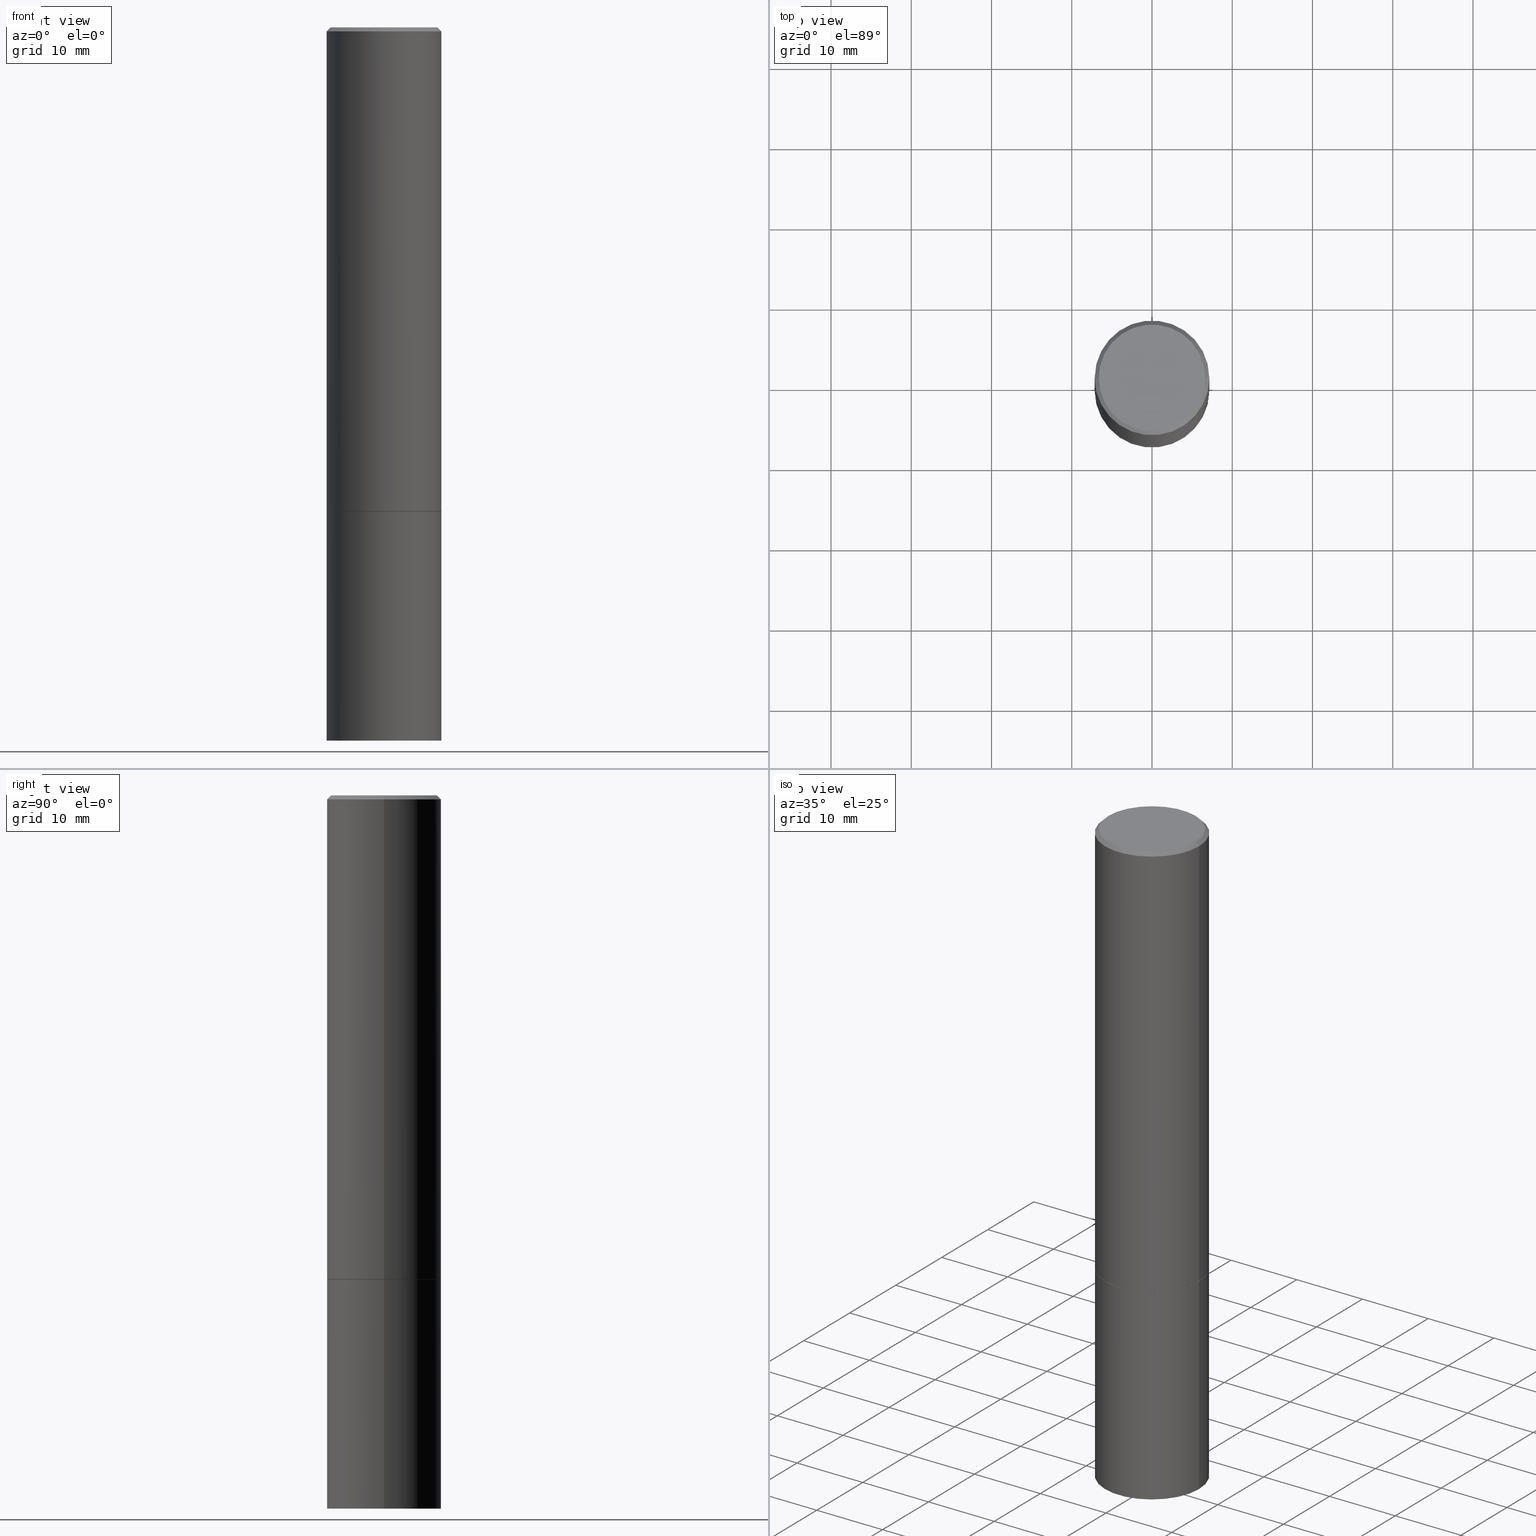
[diagram: canonical four-view strip — front | top / right | iso, engineering-drawing reading convention]
A machine part, canonical four-view strip (front | top / right | iso — engineering-drawing reading convention). The complete STEP part file that produces these views, byte-faithful:
ISO-10303-21;
HEADER;
FILE_DESCRIPTION (( 'STEP AP203' ),
    '1' );
FILE_NAME ('35491.STEP',
    '2024-02-27T18:52:12',
    ( '' ),
    ( '' ),
    'SwSTEP 2.0',
    'SolidWorks 2023',
    '' );
FILE_SCHEMA (( 'CONFIG_CONTROL_DESIGN' ));
ENDSEC;

DATA;
#1 = AXIS2_PLACEMENT_3D ( 'NONE', #297, #76, #153 ) ;
#2 = EDGE_CURVE ( 'NONE', #309, #238, #357, .T. ) ;
#3 = ORIENTED_EDGE ( 'NONE', *, *, #342, .F. ) ;
#4 = DIRECTION ( 'NONE',  ( -1.000000000000000000, 6.982962677686268288E-15, 0.000000000000000000 ) ) ;
#5 = PERSON_AND_ORGANIZATION_ROLE ( 'design_owner' ) ;
#6 = CALENDAR_DATE ( 2024, 27, 2 ) ;
#7 = CC_DESIGN_PERSON_AND_ORGANIZATION_ASSIGNMENT ( #44, #154, ( #280 ) ) ;
#8 = AXIS2_PLACEMENT_3D ( 'NONE', #73, #161, #322 ) ;
#9 = ORIENTED_EDGE ( 'NONE', *, *, #13, .F. ) ;
#10 = ORIENTED_EDGE ( 'NONE', *, *, #306, .F. ) ;
#11 = FACE_OUTER_BOUND ( 'NONE', #226, .T. ) ;
#12 = CYLINDRICAL_SURFACE ( 'NONE', #350, 0.2812499999999998335 ) ;
#13 = EDGE_CURVE ( 'NONE', #205, #23, #57, .T. ) ;
#14 = CARTESIAN_POINT ( 'NONE',  ( 0.2812500000000000000, -1.025622643285173184E-14, -2.374999999999999556 ) ) ;
#15 = ADVANCED_FACE ( 'NONE', ( #11 ), #148, .T. ) ;
#16 = AXIS2_PLACEMENT_3D ( 'NONE', #293, #150, #96 ) ;
#17 = ORGANIZATION ( 'UNSPECIFIED', 'UNSPECIFIED', '' ) ;
#18 = FACE_OUTER_BOUND ( 'NONE', #346, .T. ) ;
#19 = ORIENTED_EDGE ( 'NONE', *, *, #251, .T. ) ;
#20 = DIRECTION ( 'NONE',  ( -2.445468806185136597E-29, 3.491481338843145583E-15, 1.000000000000000000 ) ) ;
#21 = CALENDAR_DATE ( 2024, 27, 2 ) ;
#22 = ADVANCED_BREP_SHAPE_REPRESENTATION ( '35491', ( #165, #170, #216 ), #77 ) ;
#23 = VERTEX_POINT ( 'NONE', #208 ) ;
#24 = DIRECTION ( 'NONE',  ( -2.445468806185136597E-29, 3.491481338843145583E-15, 1.000000000000000000 ) ) ;
#25 = APPROVAL_ROLE ( '' ) ;
#26 = VECTOR ( 'NONE', #67, 39.37007874015748143 ) ;
#27 = VECTOR ( 'NONE', #130, 39.37007874015748143 ) ;
#28 = LENGTH_MEASURE_WITH_UNIT ( LENGTH_MEASURE( 0.02539999999999999897 ), #192 );
#29 = VERTEX_POINT ( 'NONE', #320 ) ;
#30 = EDGE_CURVE ( 'NONE', #55, #94, #172, .T. ) ;
#31 = CARTESIAN_POINT ( 'NONE',  ( 5.807988414689697175E-29, -8.292268179752466962E-15, -2.374999999999999112 ) ) ;
#32 = ADVANCED_FACE ( 'NONE', ( #152 ), #351, .F. ) ;
#33 = AXIS2_PLACEMENT_3D ( 'NONE', #72, #355, #326 ) ;
#34 = DIRECTION ( 'NONE',  ( -2.445468806185136597E-29, 3.491481338843145583E-15, 1.000000000000000000 ) ) ;
#35 = UNCERTAINTY_MEASURE_WITH_UNIT (LENGTH_MEASURE( 1.000000000000000082E-05 ), #142, 'distance_accuracy_value', 'NONE');
#36 = ORIENTED_EDGE ( 'NONE', *, *, #167, .F. ) ;
#37 = MECHANICAL_CONTEXT ( 'NONE', #50, 'mechanical' ) ;
#38 = APPROVAL ( #65, 'UNSPECIFIED' ) ;
#39 = ORIENTED_EDGE ( 'NONE', *, *, #264, .T. ) ;
#40 = LOCAL_TIME ( 13, 52, 12.00000000000000000, #185 ) ;
#41 = FACE_OUTER_BOUND ( 'NONE', #268, .T. ) ;
#42 = DIRECTION ( 'NONE',  ( 1.000000000000000000, -6.982962677686265922E-15, 4.876176775795935793E-29 ) ) ;
#43 = DIRECTION ( 'NONE',  ( 1.000000000000000000, -6.982962677686268288E-15, 0.000000000000000000 ) ) ;
#44 = PERSON_AND_ORGANIZATION ( #90, #17 ) ;
#45 = DIRECTION ( 'NONE',  ( -1.000000000000000000, 6.982962677686265922E-15, -4.876176775795935793E-29 ) ) ;
#46 = CARTESIAN_POINT ( 'NONE',  ( 0.2802499999999999991, -1.024924347017404425E-14, -2.374999999999999112 ) ) ;
#47 = ORIENTED_EDGE ( 'NONE', *, *, #146, .T. ) ;
#48 = LINE ( 'NONE', #133, #283 ) ;
#49 = DATE_AND_TIME ( #80, #40 ) ;
#50 = APPLICATION_CONTEXT ( 'configuration controlled 3d designs of mechanical parts and assemblies' ) ;
#51 = DIRECTION ( 'NONE',  ( -2.438088387897960049E-29, 3.491481338843145188E-15, 1.000000000000000000 ) ) ;
#52 = CARTESIAN_POINT ( 'NONE',  ( 8.559140821647976968E-29, -1.222018468595100934E-14, -3.500000000000000000 ) ) ;
#53 = LOCAL_TIME ( 13, 52, 12.00000000000000000, #244 ) ;
#54 = ADVANCED_FACE ( 'NONE', ( #327 ), #111, .F. ) ;
#55 = VERTEX_POINT ( 'NONE', #364 ) ;
#56 = ORIENTED_EDGE ( 'NONE', *, *, #84, .F. ) ;
#57 = CIRCLE ( 'NONE', #332, 0.2812500000000000000 ) ;
#58 = CC_DESIGN_APPROVAL ( #97, ( #280 ) ) ;
#59 = LINE ( 'NONE', #282, #114 ) ;
#60 = ADVANCED_FACE ( 'NONE', ( #308 ), #314, .T. ) ;
#61 = ORIENTED_EDGE ( 'NONE', *, *, #87, .T. ) ;
#62 = FACE_OUTER_BOUND ( 'NONE', #115, .T. ) ;
#63 = ORIENTED_EDGE ( 'NONE', *, *, #217, .T. ) ;
#64 = CIRCLE ( 'NONE', #145, 0.2812499999999996114 ) ;
#65 = APPROVAL_STATUS ( 'not_yet_approved' ) ;
#66 = ORIENTED_EDGE ( 'NONE', *, *, #13, .T. ) ;
#67 = DIRECTION ( 'NONE',  ( -0.7071067811866320607, 7.493145998870660238E-15, 0.7071067811864629737 ) ) ;
#68 = DIRECTION ( 'NONE',  ( -2.445468806185136597E-29, 3.491481338843145583E-15, 1.000000000000000000 ) ) ;
#69 = AXIS2_PLACEMENT_3D ( 'NONE', #52, #88, #256 ) ;
#70 = DIRECTION ( 'NONE',  ( 1.000000000000000000, -6.982962677686269866E-15, 0.000000000000000000 ) ) ;
#71 = ORIENTED_EDGE ( 'NONE', *, *, #199, .T. ) ;
#72 = CARTESIAN_POINT ( 'NONE',  ( 5.805542945883512693E-29, -8.288776698413625533E-15, -2.373999999999999222 ) ) ;
#73 = CARTESIAN_POINT ( 'NONE',  ( 5.807988414689697175E-29, -8.292268179752466962E-15, -2.374999999999999112 ) ) ;
#74 = PERSON_AND_ORGANIZATION ( #90, #17 ) ;
#75 = CC_DESIGN_PERSON_AND_ORGANIZATION_ASSIGNMENT ( #182, #298, ( #280 ) ) ;
#76 = DIRECTION ( 'NONE',  ( 2.438088387897960049E-29, -3.491481338843145188E-15, -1.000000000000000000 ) ) ;
#77 =( GEOMETRIC_REPRESENTATION_CONTEXT ( 3 ) GLOBAL_UNCERTAINTY_ASSIGNED_CONTEXT ( ( #35 ) ) GLOBAL_UNIT_ASSIGNED_CONTEXT ( ( #142, #361, #176 ) ) REPRESENTATION_CONTEXT ( 'NONE', 'WORKASPACE' ) );
#78 = ORIENTED_EDGE ( 'NONE', *, *, #194, .F. ) ;
#79 = FACE_OUTER_BOUND ( 'NONE', #344, .T. ) ;
#80 = CALENDAR_DATE ( 2024, 27, 2 ) ;
#81 = DIRECTION ( 'NONE',  ( -2.445468806185136877E-29, 3.491481338843145188E-15, 1.000000000000000000 ) ) ;
#82 = APPROVAL_DATE_TIME ( #222, #203 ) ;
#83 = ORIENTED_EDGE ( 'NONE', *, *, #30, .F. ) ;
#84 = EDGE_CURVE ( 'NONE', #29, #331, #92, .T. ) ;
#85 = DIRECTION ( 'NONE',  ( -1.000000000000000000, 6.982962677686265922E-15, -4.876176775795935793E-29 ) ) ;
#86 = CIRCLE ( 'NONE', #290, 0.2812500000000000555 ) ;
#87 = EDGE_CURVE ( 'NONE', #238, #309, #279, .T. ) ;
#88 = DIRECTION ( 'NONE',  ( -2.445468806185136597E-29, 3.491481338843145583E-15, 1.000000000000000000 ) ) ;
#89 = PRODUCT_DEFINITION ( 'UNKNOWN', '', #280, #254 ) ;
#90 = PERSON ( 'UNSPECIFIED', 'UNSPECIFIED', 'UNSPECIFIED', ('UNSPECIFIED'), ('UNSPECIFIED'), ('UNSPECIFIED') ) ;
#91 = AXIS2_PLACEMENT_3D ( 'NONE', #180, #296, #43 ) ;
#92 = LINE ( 'NONE', #123, #26 ) ;
#93 = AXIS2_PLACEMENT_3D ( 'NONE', #118, #235, #218 ) ;
#94 = VERTEX_POINT ( 'NONE', #200 ) ;
#95 = CARTESIAN_POINT ( 'NONE',  ( 8.559140821647976968E-29, -1.222018468595100934E-14, -3.500000000000000000 ) ) ;
#96 = DIRECTION ( 'NONE',  ( 1.000000000000000000, -6.982962677686266711E-15, 4.876176775795935793E-29 ) ) ;
#97 = APPROVAL ( #300, 'UNSPECIFIED' ) ;
#98 = ORIENTED_EDGE ( 'NONE', *, *, #220, .T. ) ;
#99 = DIRECTION ( 'NONE',  ( 1.000000000000000000, -6.982962677686269077E-15, 0.000000000000000000 ) ) ;
#100 = CARTESIAN_POINT ( 'NONE',  ( 0.000000000000000000, 0.000000000000000000, 0.000000000000000000 ) ) ;
#101 = CARTESIAN_POINT ( 'NONE',  ( 1.963958253099320494E-15, 0.2812499999999917288, -2.375000000000000444 ) ) ;
#102 = LINE ( 'NONE', #46, #27 ) ;
#103 = CARTESIAN_POINT ( 'NONE',  ( 5.805542945883512693E-29, -8.288776698413625533E-15, -2.373999999999999222 ) ) ;
#104 = DATE_TIME_ROLE ( 'creation_date' ) ;
#105 = AXIS2_PLACEMENT_3D ( 'NONE', #343, #68, #233 ) ;
#106 = CARTESIAN_POINT ( 'NONE',  ( 0.000000000000000000, 0.000000000000000000, 0.000000000000000000 ) ) ;
#107 = APPROVAL_STATUS ( 'not_yet_approved' ) ;
#108 = AXIS2_PLACEMENT_3D ( 'NONE', #126, #240, #321 ) ;
#109 = DIRECTION ( 'NONE',  ( -2.445468806185136597E-29, 3.491481338843145583E-15, 1.000000000000000000 ) ) ;
#110 = DATE_AND_TIME ( #21, #363 ) ;
#111 = PLANE ( 'NONE',  #156 ) ;
#112 = CARTESIAN_POINT ( 'NONE',  ( 4.890937612370292426E-31, -6.982962677686317493E-17, -0.02000000000000007674 ) ) ;
#113 = AXIS2_PLACEMENT_3D ( 'NONE', #288, #315, #4 ) ;
#114 = VECTOR ( 'NONE', #166, 39.37007874015748143 ) ;
#115 = EDGE_LOOP ( 'NONE', ( #263, #63, #339, #336 ) ) ;
#116 = AXIS2_PLACEMENT_3D ( 'NONE', #201, #318, #175 ) ;
#117 = APPROVAL_PERSON_ORGANIZATION ( #348, #203, #356 ) ;
#118 = CARTESIAN_POINT ( 'NONE',  ( 5.807988414689698296E-29, -8.292268179752468540E-15, -2.374999999999999556 ) ) ;
#119 = APPLICATION_PROTOCOL_DEFINITION ( 'international standard', 'config_control_design', 1994, #177 ) ;
#120 = CLOSED_SHELL ( 'NONE', ( #284, #195, #140, #223, #129, #15, #183, #54 ) ) ;
#121 = CC_DESIGN_SECURITY_CLASSIFICATION ( #307, ( #280 ) ) ;
#122 = CC_DESIGN_APPROVAL ( #38, ( #89 ) ) ;
#123 = CARTESIAN_POINT ( 'NONE',  ( -0.2802499999999999991, -6.300972162784786987E-15, -2.374999999999999112 ) ) ;
#124 = ORIENTED_EDGE ( 'NONE', *, *, #281, .T. ) ;
#125 = DIRECTION ( 'NONE',  ( -2.445468806185136597E-29, 3.491481338843145583E-15, 1.000000000000000000 ) ) ;
#126 = CARTESIAN_POINT ( 'NONE',  ( 4.890937612370292426E-31, -6.982962677686317493E-17, -0.02000000000000007674 ) ) ;
#127 = LINE ( 'NONE', #243, #337 ) ;
#128 = PERSON_AND_ORGANIZATION_ROLE ( 'classification_officer' ) ;
#129 = ADVANCED_FACE ( 'NONE', ( #41 ), #168, .T. ) ;
#130 = DIRECTION ( 'NONE',  ( 0.7071067811866320607, -2.468850131083142557E-15, 0.7071067811864629737 ) ) ;
#131 = CALENDAR_DATE ( 2024, 27, 2 ) ;
#132 = DIRECTION ( 'NONE',  ( -2.445468806185136597E-29, 3.491481338843145583E-15, 1.000000000000000000 ) ) ;
#133 = CARTESIAN_POINT ( 'NONE',  ( -0.2812499999999998335, 1.998401444325280589E-15, -1.383450494134191428E-29 ) ) ;
#134 = PERSON_AND_ORGANIZATION_ROLE ( 'creator' ) ;
#135 = DIRECTION ( 'NONE',  ( -2.445468806185136597E-29, 3.491481338843145583E-15, 1.000000000000000000 ) ) ;
#136 = ORIENTED_EDGE ( 'NONE', *, *, #143, .F. ) ;
#137 = CARTESIAN_POINT ( 'NONE',  ( -0.2612499999999995937, 1.859213812933965593E-15, -1.288019758893701069E-29 ) ) ;
#138 = CIRCLE ( 'NONE', #33, 0.2812500000000000555 ) ;
#139 = VECTOR ( 'NONE', #277, 39.37007874015748143 ) ;
#140 = ADVANCED_FACE ( 'NONE', ( #62 ), #224, .T. ) ;
#141 = DIRECTION ( 'NONE',  ( 1.000000000000000000, -6.982962677686269866E-15, 0.000000000000000000 ) ) ;
#142 =( CONVERSION_BASED_UNIT ( 'INCH', #28 ) LENGTH_UNIT ( ) NAMED_UNIT ( #292 ) );
#143 = EDGE_CURVE ( 'NONE', #258, #147, #202, .T. ) ;
#144 = ORIENTED_EDGE ( 'NONE', *, *, #335, .T. ) ;
#145 = AXIS2_PLACEMENT_3D ( 'NONE', #112, #330, #285 ) ;
#146 = EDGE_CURVE ( 'NONE', #331, #257, #138, .T. ) ;
#147 = VERTEX_POINT ( 'NONE', #211 ) ;
#148 = CONICAL_SURFACE ( 'NONE', #349, 0.2802499999999999991, 0.7853981633975678500 ) ;
#149 = APPROVAL_PERSON_ORGANIZATION ( #236, #38, #291 ) ;
#150 = DIRECTION ( 'NONE',  ( -2.445468806185136597E-29, 3.491481338843145583E-15, 1.000000000000000000 ) ) ;
#151 = DIRECTION ( 'NONE',  ( 1.000000000000000000, -6.982962677686269077E-15, 0.000000000000000000 ) ) ;
#152 = FACE_OUTER_BOUND ( 'NONE', #215, .T. ) ;
#153 = DIRECTION ( 'NONE',  ( -1.000000000000000000, 6.982962677686265922E-15, -4.876176775795935793E-29 ) ) ;
#154 = PERSON_AND_ORGANIZATION_ROLE ( 'design_supplier' ) ;
#155 = EDGE_CURVE ( 'NONE', #331, #55, #48, .T. ) ;
#156 = AXIS2_PLACEMENT_3D ( 'NONE', #329, #193, #85 ) ;
#157 = AXIS2_PLACEMENT_3D ( 'NONE', #229, #227, #141 ) ;
#158 = CARTESIAN_POINT ( 'NONE',  ( 0.2612499999999995937, -1.895824895283956809E-15, 1.300802449975685690E-29 ) ) ;
#159 = EDGE_LOOP ( 'NONE', ( #310, #234, #239, #252 ) ) ;
#160 = DIRECTION ( 'NONE',  ( 1.000000000000000000, -6.982962677686268288E-15, 0.000000000000000000 ) ) ;
#161 = DIRECTION ( 'NONE',  ( -2.445468806185136597E-29, 3.491481338843145583E-15, 1.000000000000000000 ) ) ;
#162 = SECURITY_CLASSIFICATION_LEVEL ( 'unclassified' ) ;
#163 = CC_DESIGN_PERSON_AND_ORGANIZATION_ASSIGNMENT ( #249, #134, ( #89 ) ) ;
#164 = PRODUCT_DEFINITION_SHAPE ( 'NONE', 'NONE',  #89 ) ;
#165 = MANIFOLD_SOLID_BREP ( 'Body-Move/Copy2[1]', #287 ) ;
#166 = DIRECTION ( 'NONE',  ( -2.445468806185136877E-29, 3.491481338843145188E-15, 1.000000000000000000 ) ) ;
#167 = EDGE_CURVE ( 'NONE', #171, #29, #341, .T. ) ;
#168 = CYLINDRICAL_SURFACE ( 'NONE', #16, 0.2812499999999998335 ) ;
#169 = DIRECTION ( 'NONE',  ( 0.000000000000000000, 0.000000000000000000, 1.000000000000000000 ) ) ;
#170 = MANIFOLD_SOLID_BREP ( 'Body-Move/Copy2[2]', #120 ) ;
#171 = VERTEX_POINT ( 'NONE', #269 ) ;
#172 = CIRCLE ( 'NONE', #91, 0.2812499999999996114 ) ;
#173 = CIRCLE ( 'NONE', #69, 0.2812500000000000000 ) ;
#174 = EDGE_LOOP ( 'NONE', ( #362, #61 ) ) ;
#175 = DIRECTION ( 'NONE',  ( 1.000000000000000000, -6.982962677686266711E-15, 4.876176775795935793E-29 ) ) ;
#176 =( NAMED_UNIT ( * ) SI_UNIT ( $, .STERADIAN. ) SOLID_ANGLE_UNIT ( ) );
#177 = APPLICATION_CONTEXT ( 'configuration controlled 3d designs of mechanical parts and assemblies' ) ;
#178 = VECTOR ( 'NONE', #323, 39.37007874015748143 ) ;
#179 = ADVANCED_FACE ( 'NONE', ( #79 ), #328, .T. ) ;
#180 = CARTESIAN_POINT ( 'NONE',  ( 4.890937612370292426E-31, -6.982962677686317493E-17, -0.02000000000000007674 ) ) ;
#181 = DIRECTION ( 'NONE',  ( 0.7071067811865466846, -7.319954787623252890E-15, -0.7071067811865483499 ) ) ;
#182 = PERSON_AND_ORGANIZATION ( #90, #17 ) ;
#183 = ADVANCED_FACE ( 'NONE', ( #247 ), #189, .F. ) ;
#184 = LINE ( 'NONE', #299, #178 ) ;
#185 = COORDINATED_UNIVERSAL_TIME_OFFSET ( 5, 0, .BEHIND. ) ;
#186 = CONICAL_SURFACE ( 'NONE', #108, 0.2812499999999996114, 0.7853981633974471688 ) ;
#187 = ORIENTED_EDGE ( 'NONE', *, *, #264, .F. ) ;
#188 = CARTESIAN_POINT ( 'NONE',  ( 5.807988414689697175E-29, -8.292268179752466962E-15, -2.374999999999999112 ) ) ;
#189 = PLANE ( 'NONE',  #324 ) ;
#190 = CALENDAR_DATE ( 2024, 27, 2 ) ;
#191 = LINE ( 'NONE', #353, #197 ) ;
#192 =( LENGTH_UNIT ( ) NAMED_UNIT ( * ) SI_UNIT ( $, .METRE. ) );
#193 = DIRECTION ( 'NONE',  ( 2.438088387897960049E-29, -3.491481338843145188E-15, -1.000000000000000000 ) ) ;
#194 = EDGE_CURVE ( 'NONE', #29, #171, #225, .T. ) ;
#195 = ADVANCED_FACE ( 'NONE', ( #278 ), #12, .T. ) ;
#196 = ORIENTED_EDGE ( 'NONE', *, *, #194, .T. ) ;
#197 = VECTOR ( 'NONE', #181, 39.37007874015748143 ) ;
#198 = ORIENTED_EDGE ( 'NONE', *, *, #217, .F. ) ;
#199 = EDGE_CURVE ( 'NONE', #257, #331, #86, .T. ) ;
#200 = CARTESIAN_POINT ( 'NONE',  ( 0.2812499999999996114, -1.999344688650103789E-15, -0.02000000000000007674 ) ) ;
#201 = CARTESIAN_POINT ( 'NONE',  ( 0.000000000000000000, 0.000000000000000000, 0.000000000000000000 ) ) ;
#202 = CIRCLE ( 'NONE', #93, 0.2812500000000000000 ) ;
#203 = APPROVAL ( #107, 'UNSPECIFIED' ) ;
#204 = DIRECTION ( 'NONE',  ( -2.445468806185136597E-29, 3.491481338843145583E-15, 1.000000000000000000 ) ) ;
#205 = VERTEX_POINT ( 'NONE', #221 ) ;
#206 = AXIS2_PLACEMENT_3D ( 'NONE', #273, #132, #354 ) ;
#207 = AXIS2_PLACEMENT_3D ( 'NONE', #106, #20, #275 ) ;
#208 = CARTESIAN_POINT ( 'NONE',  ( 0.2812500000000000000, -1.418414293905027264E-14, -3.500000000000000000 ) ) ;
#209 = FACE_OUTER_BOUND ( 'NONE', #286, .T. ) ;
#210 = DIRECTION ( 'NONE',  ( 2.438088387897960049E-29, -3.491481338843145188E-15, -1.000000000000000000 ) ) ;
#211 = CARTESIAN_POINT ( 'NONE',  ( -0.2812500000000000000, -8.257824988526456379E-15, -2.374999999999999556 ) ) ;
#212 = APPROVAL_DATE_TIME ( #49, #97 ) ;
#213 = PLANE ( 'NONE',  #1 ) ;
#214 = PERSON_AND_ORGANIZATION ( #90, #17 ) ;
#215 = EDGE_LOOP ( 'NONE', ( #319, #365 ) ) ;
#216 = AXIS2_PLACEMENT_3D ( 'NONE', #338, #169, #289 ) ;
#217 = EDGE_CURVE ( 'NONE', #238, #94, #191, .T. ) ;
#218 = DIRECTION ( 'NONE',  ( 1.000000000000000000, -6.982962677686269866E-15, 0.000000000000000000 ) ) ;
#219 = DATE_AND_TIME ( #6, #272 ) ;
#220 = EDGE_CURVE ( 'NONE', #257, #94, #347, .T. ) ;
#221 = CARTESIAN_POINT ( 'NONE',  ( -0.2812500000000000000, -8.257824988526456379E-15, -3.500000000000000000 ) ) ;
#222 = DATE_AND_TIME ( #190, #53 ) ;
#223 = ADVANCED_FACE ( 'NONE', ( #209 ), #186, .T. ) ;
#224 = CONICAL_SURFACE ( 'NONE', #113, 0.2812499999999996114, 0.7853981633974471688 ) ;
#225 = CIRCLE ( 'NONE', #8, 0.2802499999999999991 ) ;
#226 = EDGE_LOOP ( 'NONE', ( #56, #196, #124, #340 ) ) ;
#227 = DIRECTION ( 'NONE',  ( -2.445468806185136597E-29, 3.491481338843145583E-15, 1.000000000000000000 ) ) ;
#228 = ORIENTED_EDGE ( 'NONE', *, *, #220, .F. ) ;
#229 = CARTESIAN_POINT ( 'NONE',  ( 5.807988414689698296E-29, -8.292268179752468540E-15, -2.374999999999999556 ) ) ;
#230 = CC_DESIGN_PERSON_AND_ORGANIZATION_ASSIGNMENT ( #262, #5, ( #245 ) ) ;
#231 = ORIENTED_EDGE ( 'NONE', *, *, #335, .F. ) ;
#232 = CONICAL_SURFACE ( 'NONE', #317, 0.2802499999999999991, 0.7853981633975678500 ) ;
#233 = DIRECTION ( 'NONE',  ( 1.000000000000000000, -6.982962677686266711E-15, 4.876176775795935793E-29 ) ) ;
#234 = ORIENTED_EDGE ( 'NONE', *, *, #84, .T. ) ;
#235 = DIRECTION ( 'NONE',  ( -2.445468806185136597E-29, 3.491481338843145583E-15, 1.000000000000000000 ) ) ;
#236 = PERSON_AND_ORGANIZATION ( #90, #17 ) ;
#237 = ADVANCED_FACE ( 'NONE', ( #18 ), #213, .T. ) ;
#238 = VERTEX_POINT ( 'NONE', #158 ) ;
#239 = ORIENTED_EDGE ( 'NONE', *, *, #199, .F. ) ;
#240 = DIRECTION ( 'NONE',  ( 2.445468806185136597E-29, -3.491481338843145583E-15, -1.000000000000000000 ) ) ;
#241 = DATE_AND_TIME ( #131, #260 ) ;
#242 = CARTESIAN_POINT ( 'NONE',  ( 5.807988414689697175E-29, -8.292268179752466962E-15, -2.374999999999999112 ) ) ;
#243 = CARTESIAN_POINT ( 'NONE',  ( -0.2812500000000000000, 1.998401444325281773E-15, -1.383450494134192269E-29 ) ) ;
#244 = COORDINATED_UNIVERSAL_TIME_OFFSET ( 5, 0, .BEHIND. ) ;
#245 = PRODUCT ( '35491', '35491', '', ( #37 ) ) ;
#246 = FACE_OUTER_BOUND ( 'NONE', #159, .T. ) ;
#247 = FACE_OUTER_BOUND ( 'NONE', #294, .T. ) ;
#248 = COORDINATED_UNIVERSAL_TIME_OFFSET ( 5, 0, .BEHIND. ) ;
#249 = PERSON_AND_ORGANIZATION ( #90, #17 ) ;
#250 = PRODUCT_RELATED_PRODUCT_CATEGORY ( 'detail', '', ( #245 ) ) ;
#251 = EDGE_CURVE ( 'NONE', #309, #55, #184, .T. ) ;
#252 = ORIENTED_EDGE ( 'NONE', *, *, #281, .F. ) ;
#253 = CARTESIAN_POINT ( 'NONE',  ( -0.2812500000000000000, -2.180901718269959487E-15, -2.373999999999999222 ) ) ;
#254 = DESIGN_CONTEXT ( 'detailed design', #177, 'design' ) ;
#255 = EDGE_LOOP ( 'NONE', ( #71, #313, #3, #228 ) ) ;
#256 = DIRECTION ( 'NONE',  ( 1.000000000000000000, -6.982962677686269866E-15, 0.000000000000000000 ) ) ;
#257 = VERTEX_POINT ( 'NONE', #270 ) ;
#258 = VERTEX_POINT ( 'NONE', #14 ) ;
#259 = AXIS2_PLACEMENT_3D ( 'NONE', #101, #210, #45 ) ;
#260 = LOCAL_TIME ( 13, 52, 12.00000000000000000, #359 ) ;
#261 = CC_DESIGN_PERSON_AND_ORGANIZATION_ASSIGNMENT ( #214, #128, ( #307 ) ) ;
#262 = PERSON_AND_ORGANIZATION ( #90, #17 ) ;
#263 = ORIENTED_EDGE ( 'NONE', *, *, #87, .F. ) ;
#264 = EDGE_CURVE ( 'NONE', #205, #147, #127, .T. ) ;
#265 = COORDINATED_UNIVERSAL_TIME_OFFSET ( 5, 0, .BEHIND. ) ;
#266 = AXIS2_PLACEMENT_3D ( 'NONE', #188, #24, #151 ) ;
#267 = ORIENTED_EDGE ( 'NONE', *, *, #30, .T. ) ;
#268 = EDGE_LOOP ( 'NONE', ( #311, #47, #98, #83 ) ) ;
#269 = CARTESIAN_POINT ( 'NONE',  ( 0.2802499999999999991, -1.024924347017404425E-14, -2.374999999999999112 ) ) ;
#270 = CARTESIAN_POINT ( 'NONE',  ( 0.2812500000000000555, -1.025273495151288883E-14, -2.373999999999999222 ) ) ;
#271 = DATE_TIME_ROLE ( 'classification_date' ) ;
#272 = LOCAL_TIME ( 13, 52, 12.00000000000000000, #265 ) ;
#273 = CARTESIAN_POINT ( 'NONE',  ( 0.000000000000000000, 0.000000000000000000, 0.000000000000000000 ) ) ;
#274 = CC_DESIGN_DATE_AND_TIME_ASSIGNMENT ( #110, #271, ( #307 ) ) ;
#275 = DIRECTION ( 'NONE',  ( 1.000000000000000000, -6.982962677686266711E-15, 4.876176775795935793E-29 ) ) ;
#276 = ORIENTED_EDGE ( 'NONE', *, *, #2, .F. ) ;
#277 = DIRECTION ( 'NONE',  ( -2.445468806185136877E-29, 3.491481338843145188E-15, 1.000000000000000000 ) ) ;
#278 = FACE_OUTER_BOUND ( 'NONE', #255, .T. ) ;
#279 = CIRCLE ( 'NONE', #116, 0.2612499999999995937 ) ;
#280 = PRODUCT_DEFINITION_FORMATION_WITH_SPECIFIED_SOURCE ( 'ANY', '', #245, .NOT_KNOWN. ) ;
#281 = EDGE_CURVE ( 'NONE', #171, #257, #102, .T. ) ;
#282 = CARTESIAN_POINT ( 'NONE',  ( 0.2812500000000000000, -1.963958253099262512E-15, 1.371424718192607012E-29 ) ) ;
#283 = VECTOR ( 'NONE', #81, 39.37007874015748143 ) ;
#284 = ADVANCED_FACE ( 'NONE', ( #246 ), #232, .T. ) ;
#285 = DIRECTION ( 'NONE',  ( 1.000000000000000000, -6.982962677686268288E-15, 0.000000000000000000 ) ) ;
#286 = EDGE_LOOP ( 'NONE', ( #198, #276, #19, #267 ) ) ;
#287 = CLOSED_SHELL ( 'NONE', ( #179, #237, #32, #60 ) ) ;
#288 = CARTESIAN_POINT ( 'NONE',  ( 4.890937612370292426E-31, -6.982962677686317493E-17, -0.02000000000000007674 ) ) ;
#289 = DIRECTION ( 'NONE',  ( 1.000000000000000000, 0.000000000000000000, 0.000000000000000000 ) ) ;
#290 = AXIS2_PLACEMENT_3D ( 'NONE', #103, #109, #160 ) ;
#291 = APPROVAL_ROLE ( '' ) ;
#292 = DIMENSIONAL_EXPONENTS ( 1.000000000000000000, 0.000000000000000000, 0.000000000000000000, 0.000000000000000000, 0.000000000000000000, 0.000000000000000000, 0.000000000000000000 ) ;
#293 = CARTESIAN_POINT ( 'NONE',  ( 0.000000000000000000, 0.000000000000000000, 0.000000000000000000 ) ) ;
#294 = EDGE_LOOP ( 'NONE', ( #36, #78 ) ) ;
#295 = CIRCLE ( 'NONE', #157, 0.2812500000000000000 ) ;
#296 = DIRECTION ( 'NONE',  ( -2.445468806185136597E-29, 3.491481338843145583E-15, 1.000000000000000000 ) ) ;
#297 = CARTESIAN_POINT ( 'NONE',  ( 1.963958253099348104E-15, 0.2812499999999877875, -3.500000000000000888 ) ) ;
#298 = PERSON_AND_ORGANIZATION_ROLE ( 'creator' ) ;
#299 = CARTESIAN_POINT ( 'NONE',  ( -0.2812499999999996114, 1.894128626322396848E-15, -0.02000000000000007674 ) ) ;
#300 = APPROVAL_STATUS ( 'not_yet_approved' ) ;
#301 = EDGE_CURVE ( 'NONE', #147, #258, #295, .T. ) ;
#302 = CARTESIAN_POINT ( 'NONE',  ( 0.2812499999999998335, -1.963958253099261329E-15, 1.371424718192606171E-29 ) ) ;
#303 = APPROVAL_DATE_TIME ( #219, #38 ) ;
#304 = CARTESIAN_POINT ( 'NONE',  ( 5.807988414689697175E-29, -8.292268179752466962E-15, -2.374999999999999112 ) ) ;
#305 = SHAPE_DEFINITION_REPRESENTATION ( #164, #22 ) ;
#306 = EDGE_CURVE ( 'NONE', #23, #205, #173, .T. ) ;
#307 = SECURITY_CLASSIFICATION ( '', '', #162 ) ;
#308 = FACE_OUTER_BOUND ( 'NONE', #345, .T. ) ;
#309 = VERTEX_POINT ( 'NONE', #137 ) ;
#310 = ORIENTED_EDGE ( 'NONE', *, *, #167, .T. ) ;
#311 = ORIENTED_EDGE ( 'NONE', *, *, #155, .F. ) ;
#312 = ORIENTED_EDGE ( 'NONE', *, *, #301, .F. ) ;
#313 = ORIENTED_EDGE ( 'NONE', *, *, #155, .T. ) ;
#314 = CYLINDRICAL_SURFACE ( 'NONE', #105, 0.2812500000000000000 ) ;
#315 = DIRECTION ( 'NONE',  ( 2.445468806185136597E-29, -3.491481338843145583E-15, -1.000000000000000000 ) ) ;
#316 = APPLICATION_PROTOCOL_DEFINITION ( 'international standard', 'config_control_design', 1994, #50 ) ;
#317 = AXIS2_PLACEMENT_3D ( 'NONE', #31, #34, #360 ) ;
#318 = DIRECTION ( 'NONE',  ( -2.445468806185136597E-29, 3.491481338843145583E-15, 1.000000000000000000 ) ) ;
#319 = ORIENTED_EDGE ( 'NONE', *, *, #143, .T. ) ;
#320 = CARTESIAN_POINT ( 'NONE',  ( -0.2802499999999999991, -6.295673708436564585E-15, -2.374999999999999112 ) ) ;
#321 = DIRECTION ( 'NONE',  ( -1.000000000000000000, 6.982962677686268288E-15, 0.000000000000000000 ) ) ;
#322 = DIRECTION ( 'NONE',  ( 1.000000000000000000, -6.982962677686269077E-15, 0.000000000000000000 ) ) ;
#323 = DIRECTION ( 'NONE',  ( -0.7071067811865466846, 2.468850131082247989E-15, -0.7071067811865483499 ) ) ;
#324 = AXIS2_PLACEMENT_3D ( 'NONE', #304, #51, #42 ) ;
#325 = CC_DESIGN_APPROVAL ( #203, ( #307 ) ) ;
#326 = DIRECTION ( 'NONE',  ( 1.000000000000000000, -6.982962677686268288E-15, 0.000000000000000000 ) ) ;
#327 = FACE_OUTER_BOUND ( 'NONE', #174, .T. ) ;
#328 = CYLINDRICAL_SURFACE ( 'NONE', #207, 0.2812500000000000000 ) ;
#329 = CARTESIAN_POINT ( 'NONE',  ( 1.824298999545534338E-15, 0.2612499999999995937, -9.121494997727705218E-16 ) ) ;
#330 = DIRECTION ( 'NONE',  ( -2.445468806185136597E-29, 3.491481338843145583E-15, 1.000000000000000000 ) ) ;
#331 = VERTEX_POINT ( 'NONE', #253 ) ;
#332 = AXIS2_PLACEMENT_3D ( 'NONE', #95, #204, #70 ) ;
#333 = APPROVAL_PERSON_ORGANIZATION ( #74, #97, #25 ) ;
#334 = CC_DESIGN_DATE_AND_TIME_ASSIGNMENT ( #241, #104, ( #89 ) ) ;
#335 = EDGE_CURVE ( 'NONE', #23, #258, #59, .T. ) ;
#336 = ORIENTED_EDGE ( 'NONE', *, *, #251, .F. ) ;
#337 = VECTOR ( 'NONE', #352, 39.37007874015748143 ) ;
#338 = CARTESIAN_POINT ( 'NONE',  ( 0.000000000000000000, 0.000000000000000000, 0.000000000000000000 ) ) ;
#339 = ORIENTED_EDGE ( 'NONE', *, *, #342, .T. ) ;
#340 = ORIENTED_EDGE ( 'NONE', *, *, #146, .F. ) ;
#341 = CIRCLE ( 'NONE', #266, 0.2802499999999999991 ) ;
#342 = EDGE_CURVE ( 'NONE', #94, #55, #64, .T. ) ;
#343 = CARTESIAN_POINT ( 'NONE',  ( 0.000000000000000000, 0.000000000000000000, 0.000000000000000000 ) ) ;
#344 = EDGE_LOOP ( 'NONE', ( #366, #39, #136, #231 ) ) ;
#345 = EDGE_LOOP ( 'NONE', ( #187, #66, #144, #312 ) ) ;
#346 = EDGE_LOOP ( 'NONE', ( #10, #9 ) ) ;
#347 = LINE ( 'NONE', #302, #139 ) ;
#348 = PERSON_AND_ORGANIZATION ( #90, #17 ) ;
#349 = AXIS2_PLACEMENT_3D ( 'NONE', #242, #125, #99 ) ;
#350 = AXIS2_PLACEMENT_3D ( 'NONE', #100, #135, #358 ) ;
#351 = PLANE ( 'NONE',  #259 ) ;
#352 = DIRECTION ( 'NONE',  ( -2.445468806185136877E-29, 3.491481338843145188E-15, 1.000000000000000000 ) ) ;
#353 = CARTESIAN_POINT ( 'NONE',  ( 0.2812499999999996114, -1.999344688650103789E-15, -0.02000000000000007674 ) ) ;
#354 = DIRECTION ( 'NONE',  ( 1.000000000000000000, -6.982962677686266711E-15, 4.876176775795935793E-29 ) ) ;
#355 = DIRECTION ( 'NONE',  ( -2.445468806185136597E-29, 3.491481338843145583E-15, 1.000000000000000000 ) ) ;
#356 = APPROVAL_ROLE ( '' ) ;
#357 = CIRCLE ( 'NONE', #206, 0.2612499999999995937 ) ;
#358 = DIRECTION ( 'NONE',  ( 1.000000000000000000, -6.982962677686266711E-15, 4.876176775795935793E-29 ) ) ;
#359 = COORDINATED_UNIVERSAL_TIME_OFFSET ( 5, 0, .BEHIND. ) ;
#360 = DIRECTION ( 'NONE',  ( 1.000000000000000000, -6.982962677686269077E-15, 0.000000000000000000 ) ) ;
#361 =( NAMED_UNIT ( * ) PLANE_ANGLE_UNIT ( ) SI_UNIT ( $, .RADIAN. ) );
#362 = ORIENTED_EDGE ( 'NONE', *, *, #2, .T. ) ;
#363 = LOCAL_TIME ( 13, 52, 12.00000000000000000, #248 ) ;
#364 = CARTESIAN_POINT ( 'NONE',  ( -0.2812499999999996114, 1.894128626322396848E-15, -0.02000000000000007674 ) ) ;
#365 = ORIENTED_EDGE ( 'NONE', *, *, #301, .T. ) ;
#366 = ORIENTED_EDGE ( 'NONE', *, *, #306, .T. ) ;
ENDSEC;
END-ISO-10303-21;
